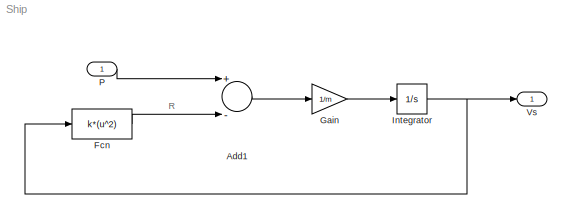
MODEL Ship
KIND model
BLOCK [Sum] Add1
  InputSameDT = off
  Inputs = +-
  OutDataTypeStr = Inherit: Inherit via internal rule
  Ports = [2, 1]
  SID = 6
  SaturateOnIntegerOverflow = off
BLOCK [Fcn] Fcn
  Expr = k*(u^2)
  SID = 4
BLOCK [Gain] Gain
  Gain = 1/m
  OutDataTypeStr = Inherit: Inherit via internal rule
  ParamDataTypeStr = Inherit: Inherit via internal rule
  SID = 3
  SaturateOnIntegerOverflow = off
BLOCK [Integrator] Integrator
  Ports = [1, 1]
  SID = 5
BLOCK [Inport] P
  IconDisplay = Port number
  SID = 1
BLOCK [Outport] Vs
  IconDisplay = Port number
  SID = 2
ANNOTATION (root): \n \n
ANNOTATION (root): R
LINE Add1:1 -> Gain:1
LINE Fcn:1 -> Add1:2
LINE Gain:1 -> Integrator:1
NET Integrator:1 -> Fcn:1, Vs:1
LINE P:1 -> Add1:1
note: NET lines group one-source signal fan-out (src -> all destinations, sorted); 1:1 wires keep LINE
